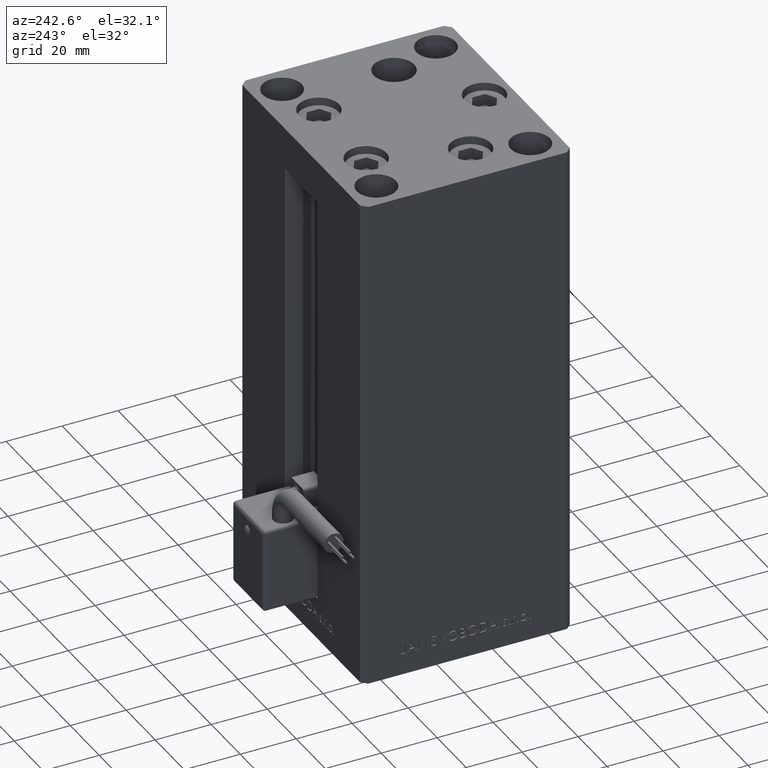
[diagram: clean part render]
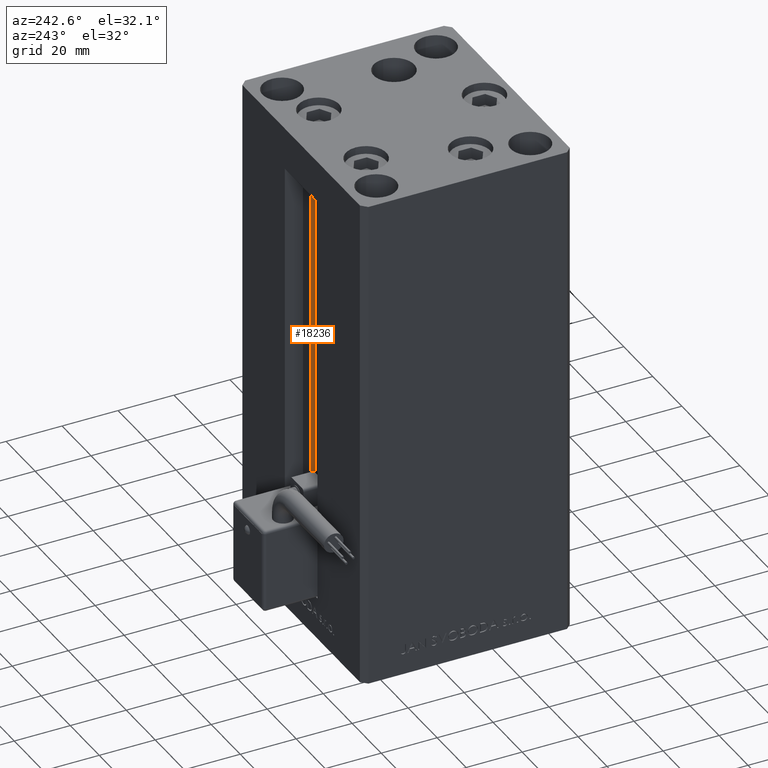
[diagram: same view with one face highlighted and labeled with its STEP entity id]
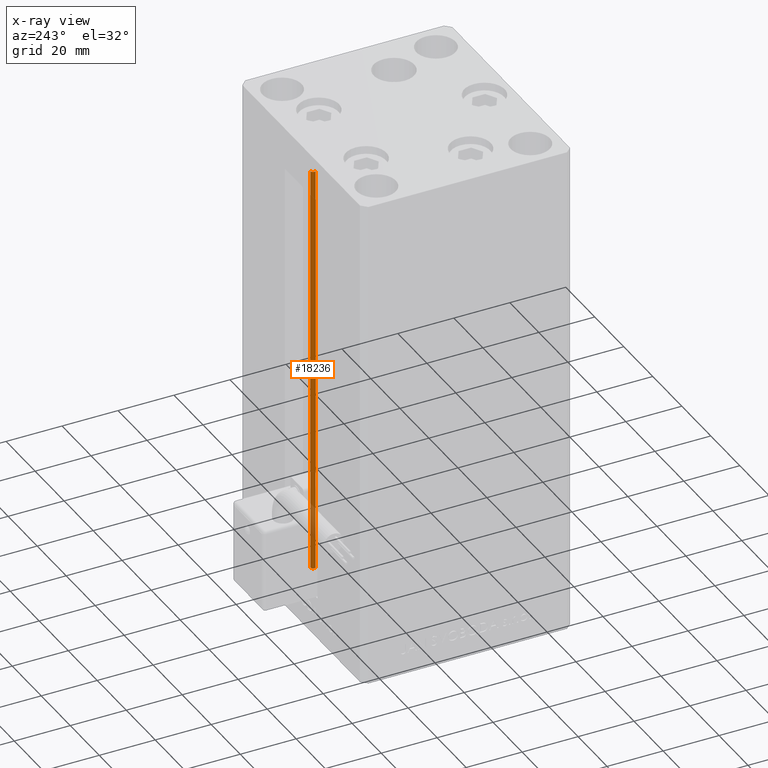
[diagram: x-ray of the same camera — body ghosted, the highlighted face saturated]
A machine part, auxiliary view. The second image highlights one B-rep face of the part: STEP entity #18236.
The next image is the same camera in x-ray: the body ghosted, the highlighted face saturated — about 8% of this face is hidden behind the body in this view.
In plain terms, the highlighted cylindrical surface (edge-blend (fillet) strip) has radius 0.9333 mm, axis along (0, 0, 1).
Its self-contained STEP definition (entity closure, byte-faithful):
#690 = CIRCLE ( 'NONE', #20943, 0.9333333333340015914 ) ;
#2623 = AXIS2_PLACEMENT_3D ( 'NONE', #10000, #30313, #50651 ) ;
#4273 = VERTEX_POINT ( 'NONE', #18148 ) ;
#4432 = EDGE_CURVE ( 'NONE', #50480, #22691, #50540, .T. ) ;
#5867 = EDGE_CURVE ( 'NONE', #4273, #22691, #690, .T. ) ;
#8632 = AXIS2_PLACEMENT_3D ( 'NONE', #44674, #28047, #19873 ) ;
#10000 = CARTESIAN_POINT ( 'NONE',  ( 6.183333333333999704, 30.06666666666599141, 0.000000000000000000 ) ) ;
#10674 = CARTESIAN_POINT ( 'NONE',  ( 6.183333333333999704, 30.99999999999999289, 0.000000000000000000 ) ) ;
#12479 = FACE_OUTER_BOUND ( 'NONE', #50740, .T. ) ;
#13460 = DIRECTION ( 'NONE',  ( -0.000000000000000000, -0.000000000000000000, 1.000000000000000000 ) ) ;
#16719 = CARTESIAN_POINT ( 'NONE',  ( 5.375042956467943611, 29.59999999999899245, 0.000000000000000000 ) ) ;
#17780 = DIRECTION ( 'NONE',  ( 0.000000000000000000, 0.000000000000000000, -1.000000000000000000 ) ) ;
#18148 = CARTESIAN_POINT ( 'NONE',  ( 5.375042956467944499, 29.59999999999899245, 148.5000000000000000 ) ) ;
#18236 = ADVANCED_FACE ( 'NONE', ( #12479 ), #28569, .T. ) ;
#18953 = VERTEX_POINT ( 'NONE', #16719 ) ;
#19873 = DIRECTION ( 'NONE',  ( 1.000000000000000000, 0.000000000000000000, 0.000000000000000000 ) ) ;
#20943 = AXIS2_PLACEMENT_3D ( 'NONE', #26720, #17780, #37820 ) ;
#21068 = EDGE_CURVE ( 'NONE', #18953, #4273, #49619, .T. ) ;
#21629 = CARTESIAN_POINT ( 'NONE',  ( 5.375042956467943611, 29.59999999999899245, 0.000000000000000000 ) ) ;
#22691 = VERTEX_POINT ( 'NONE', #30377 ) ;
#23021 = EDGE_CURVE ( 'NONE', #18953, #50480, #32985, .T. ) ;
#24467 = VECTOR ( 'NONE', #13460, 1000.000000000000000 ) ;
#26261 = DIRECTION ( 'NONE',  ( -0.000000000000000000, -0.000000000000000000, 1.000000000000000000 ) ) ;
#26720 = CARTESIAN_POINT ( 'NONE',  ( 6.183333333333999704, 30.06666666666599141, 148.5000000000000000 ) ) ;
#26867 = ORIENTED_EDGE ( 'NONE', *, *, #21068, .T. ) ;
#27824 = ORIENTED_EDGE ( 'NONE', *, *, #23021, .F. ) ;
#28047 = DIRECTION ( 'NONE',  ( -0.000000000000000000, -0.000000000000000000, 1.000000000000000000 ) ) ;
#28569 = CYLINDRICAL_SURFACE ( 'NONE', #8632, 0.9333333333340015914 ) ;
#30313 = DIRECTION ( 'NONE',  ( -0.000000000000000000, -0.000000000000000000, -1.000000000000000000 ) ) ;
#30377 = CARTESIAN_POINT ( 'NONE',  ( 6.183333333333999704, 30.99999999999999289, 148.5000000000000000 ) ) ;
#32985 = CIRCLE ( 'NONE', #2623, 0.9333333333340015914 ) ;
#34133 = ORIENTED_EDGE ( 'NONE', *, *, #5867, .T. ) ;
#37820 = DIRECTION ( 'NONE',  ( 1.000000000000000000, 0.000000000000000000, 0.000000000000000000 ) ) ;
#41973 = VECTOR ( 'NONE', #26261, 1000.000000000000000 ) ;
#44674 = CARTESIAN_POINT ( 'NONE',  ( 6.183333333333999704, 30.06666666666599141, 0.000000000000000000 ) ) ;
#45638 = ORIENTED_EDGE ( 'NONE', *, *, #4432, .F. ) ;
#45723 = CARTESIAN_POINT ( 'NONE',  ( 6.183333333333999704, 30.99999999999999289, 0.000000000000000000 ) ) ;
#49619 = LINE ( 'NONE', #21629, #24467 ) ;
#50480 = VERTEX_POINT ( 'NONE', #45723 ) ;
#50540 = LINE ( 'NONE', #10674, #41973 ) ;
#50651 = DIRECTION ( 'NONE',  ( 1.000000000000000000, 0.000000000000000000, 0.000000000000000000 ) ) ;
#50740 = EDGE_LOOP ( 'NONE', ( #45638, #27824, #26867, #34133 ) ) ;